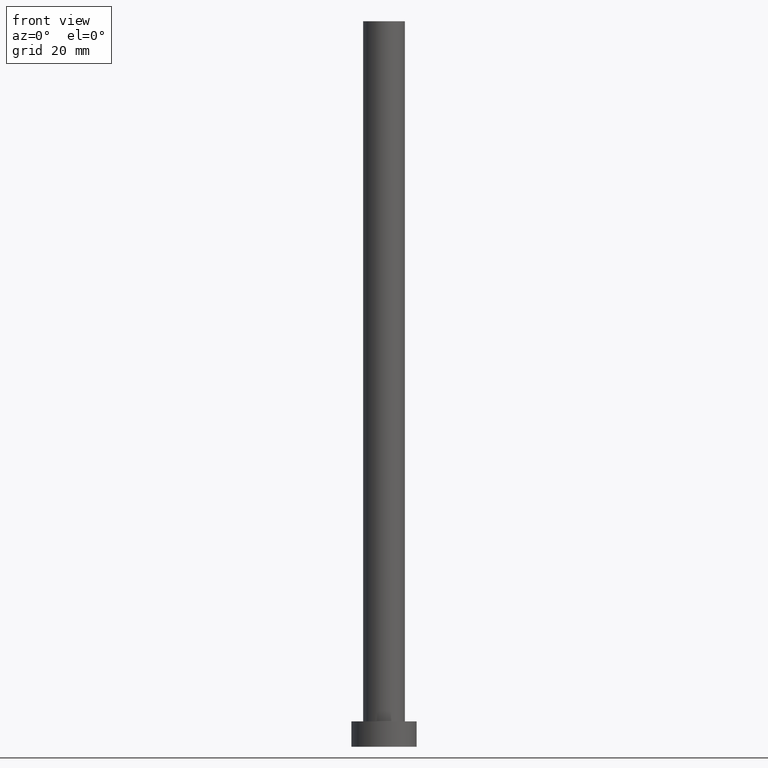
[diagram: clean part render]
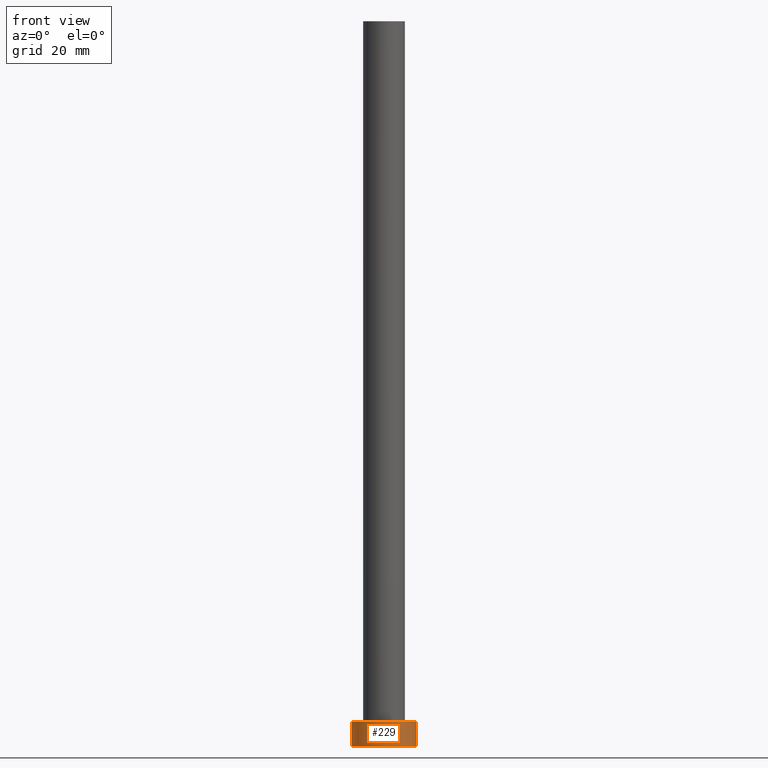
[diagram: same view with one face highlighted and labeled with its STEP entity id]
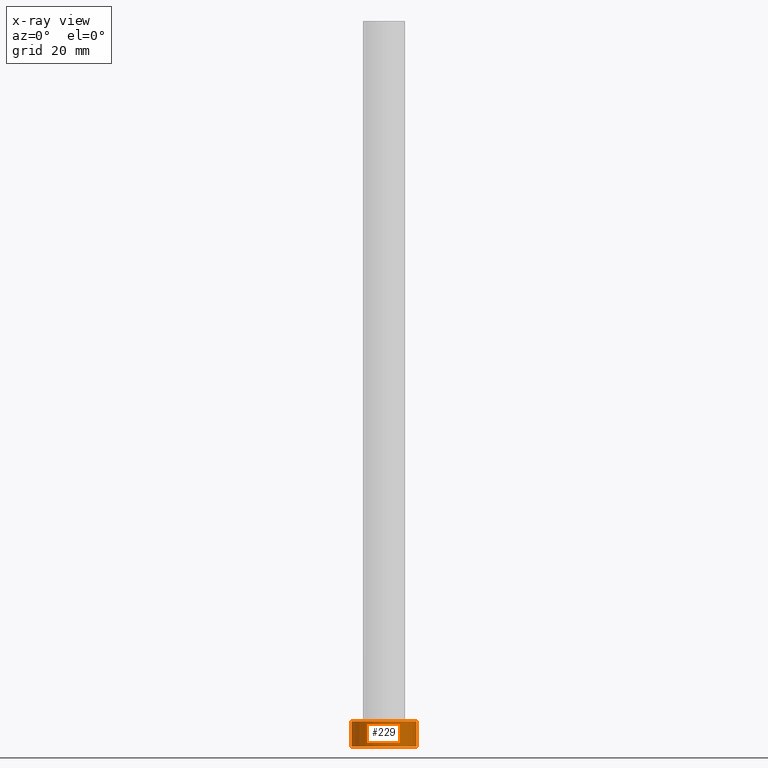
[diagram: x-ray of the same camera — body ghosted, the highlighted face saturated]
A machine part, front view. The second image highlights one B-rep face of the part: STEP entity #229.
The next image is the same camera in x-ray: the body ghosted, the highlighted face saturated — about 0% of this face is hidden behind the body in this view.
In plain terms, the highlighted cylindrical surface (edge-blend (fillet) strip) has radius 9 mm, axis along (-0, -0, -1).
Its self-contained STEP definition (entity closure, byte-faithful):
#5 = AXIS2_PLACEMENT_3D ( 'NONE', #84, #17, #103 ) ;
#6 = VERTEX_POINT ( 'NONE', #23 ) ;
#13 = FACE_OUTER_BOUND ( 'NONE', #116, .T. ) ;
#17 = DIRECTION ( 'NONE',  ( -0.000000000000000000, -0.000000000000000000, -1.000000000000000000 ) ) ;
#23 = CARTESIAN_POINT ( 'NONE',  ( 9.000000000000000000, 1.102182119232617714E-15, 7.000000000000000000 ) ) ;
#32 = CARTESIAN_POINT ( 'NONE',  ( -9.000000000000000000, 0.000000000000000000, 7.000000000000000000 ) ) ;
#40 = CARTESIAN_POINT ( 'NONE',  ( 9.000000000000000000, 1.102182119232617714E-15, 0.000000000000000000 ) ) ;
#45 = CARTESIAN_POINT ( 'NONE',  ( 0.000000000000000000, 0.000000000000000000, 7.000000000000000000 ) ) ;
#46 = LINE ( 'NONE', #32, #164 ) ;
#50 = VERTEX_POINT ( 'NONE', #133 ) ;
#52 = ORIENTED_EDGE ( 'NONE', *, *, #185, .T. ) ;
#55 = CARTESIAN_POINT ( 'NONE',  ( 9.000000000000000000, 1.102182119232617714E-15, 7.000000000000000000 ) ) ;
#57 = DIRECTION ( 'NONE',  ( -0.000000000000000000, -0.000000000000000000, -1.000000000000000000 ) ) ;
#65 = EDGE_CURVE ( 'NONE', #6, #110, #201, .T. ) ;
#73 = VERTEX_POINT ( 'NONE', #134 ) ;
#75 = ORIENTED_EDGE ( 'NONE', *, *, #65, .F. ) ;
#84 = CARTESIAN_POINT ( 'NONE',  ( 0.000000000000000000, 0.000000000000000000, 7.000000000000000000 ) ) ;
#103 = DIRECTION ( 'NONE',  ( -1.000000000000000000, 0.000000000000000000, 0.000000000000000000 ) ) ;
#104 = DIRECTION ( 'NONE',  ( 0.000000000000000000, 0.000000000000000000, 1.000000000000000000 ) ) ;
#110 = VERTEX_POINT ( 'NONE', #40 ) ;
#116 = EDGE_LOOP ( 'NONE', ( #75, #155, #52, #194 ) ) ;
#122 = DIRECTION ( 'NONE',  ( 1.000000000000000000, 0.000000000000000000, 0.000000000000000000 ) ) ;
#126 = DIRECTION ( 'NONE',  ( 1.000000000000000000, 0.000000000000000000, 0.000000000000000000 ) ) ;
#133 = CARTESIAN_POINT ( 'NONE',  ( -9.000000000000000000, 0.000000000000000000, 0.000000000000000000 ) ) ;
#134 = CARTESIAN_POINT ( 'NONE',  ( -9.000000000000000000, 0.000000000000000000, 7.000000000000000000 ) ) ;
#143 = DIRECTION ( 'NONE',  ( -0.000000000000000000, -0.000000000000000000, -1.000000000000000000 ) ) ;
#147 = VECTOR ( 'NONE', #57, 1000.000000000000000 ) ;
#155 = ORIENTED_EDGE ( 'NONE', *, *, #248, .F. ) ;
#164 = VECTOR ( 'NONE', #143, 1000.000000000000000 ) ;
#185 = EDGE_CURVE ( 'NONE', #73, #50, #46, .T. ) ;
#188 = CARTESIAN_POINT ( 'NONE',  ( 0.000000000000000000, 0.000000000000000000, 0.000000000000000000 ) ) ;
#194 = ORIENTED_EDGE ( 'NONE', *, *, #235, .T. ) ;
#201 = LINE ( 'NONE', #55, #147 ) ;
#208 = CIRCLE ( 'NONE', #215, 9.000000000000000000 ) ;
#213 = CYLINDRICAL_SURFACE ( 'NONE', #5, 9.000000000000000000 ) ;
#215 = AXIS2_PLACEMENT_3D ( 'NONE', #45, #104, #122 ) ;
#220 = AXIS2_PLACEMENT_3D ( 'NONE', #188, #250, #126 ) ;
#229 = ADVANCED_FACE ( 'NONE', ( #13 ), #213, .T. ) ;
#235 = EDGE_CURVE ( 'NONE', #50, #110, #239, .T. ) ;
#239 = CIRCLE ( 'NONE', #220, 9.000000000000000000 ) ;
#248 = EDGE_CURVE ( 'NONE', #73, #6, #208, .T. ) ;
#250 = DIRECTION ( 'NONE',  ( 0.000000000000000000, 0.000000000000000000, 1.000000000000000000 ) ) ;